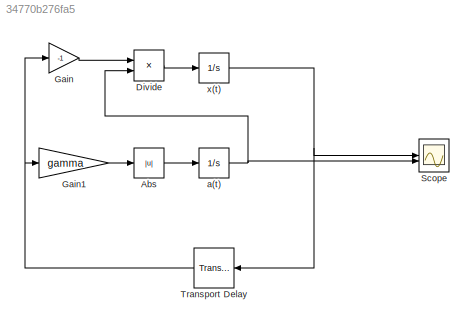
MODEL slx_34770b276fa5
KIND model
CONFIG AbsTol = auto
CONFIG EnableMultiTasking = off
CONFIG FixedStep = auto
CONFIG MaxStep = auto
CONFIG MinStep = auto
CONFIG RelTol = 1e-3
CONFIG SampleTimeConstraint = Unconstrained
CONFIG SolverName = VariableStepAuto
CONFIG StartTime = 0.0
CONFIG StopTime = 20
BLOCK [Abs] Abs
  SaturateOnIntegerOverflow = off
BLOCK [Product] Divide
  Inputs = */
BLOCK [Gain] Gain
  Gain = -1
BLOCK [Gain] Gain1
  Gain = gamma
BLOCK [Scope] Scope
  Floating = off
  NumInputPorts = 2
  ScopeSpecificationString = Simulink.scopes.TimeScopeBlockCfg('CurrentConfiguration', extmgr.ConfigurationSet(extmgr.Configuration('Core','General UI',true),extmgr.Configuration('Core','Source UI',true),extmgr.Configuration('Sources','WiredSimulink',true,'DataLogging',true),extmgr.Configuration('Visuals','Time Domain',true,'SerializedDisplays',{struct('MinYLimReal','-10.04294','MaxYLimReal','6.68611','YLabelReal','','MinYLim...<+1993ch>
BLOCK [TransportDelay] Transport Delay
  DelayTime = tau
BLOCK [Integrator] a(t)
  InitialCondition = a0
BLOCK [Integrator] x(t)
  InitialCondition = x0
LINE Abs:1 -> a(t):1
LINE Divide:1 -> x(t):1
LINE Gain1:1 -> Abs:1
LINE Gain:1 -> Divide:1
NET Transport Delay:1 -> Gain1:1, Gain:1
NET a(t):1 -> Divide:2, Scope:2
NET x(t):1 -> Scope:1, Transport Delay:1
note: NET lines group one-source signal fan-out (src -> all destinations, sorted); 1:1 wires keep LINE
